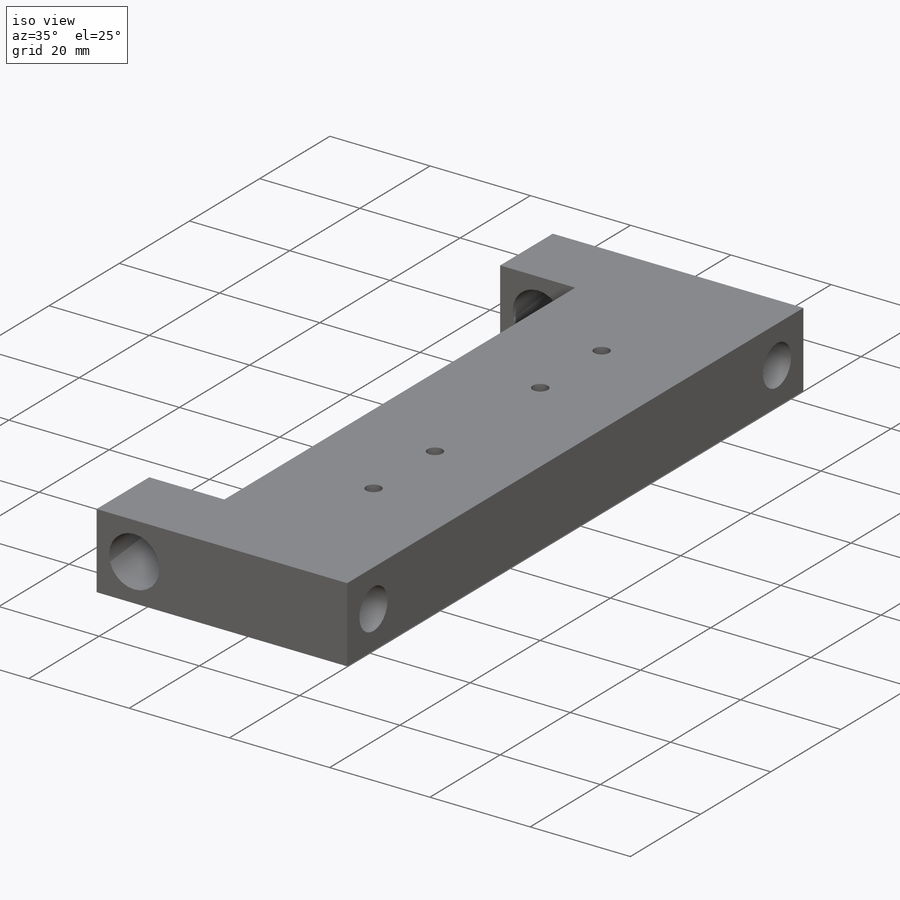
[diagram: iso view]
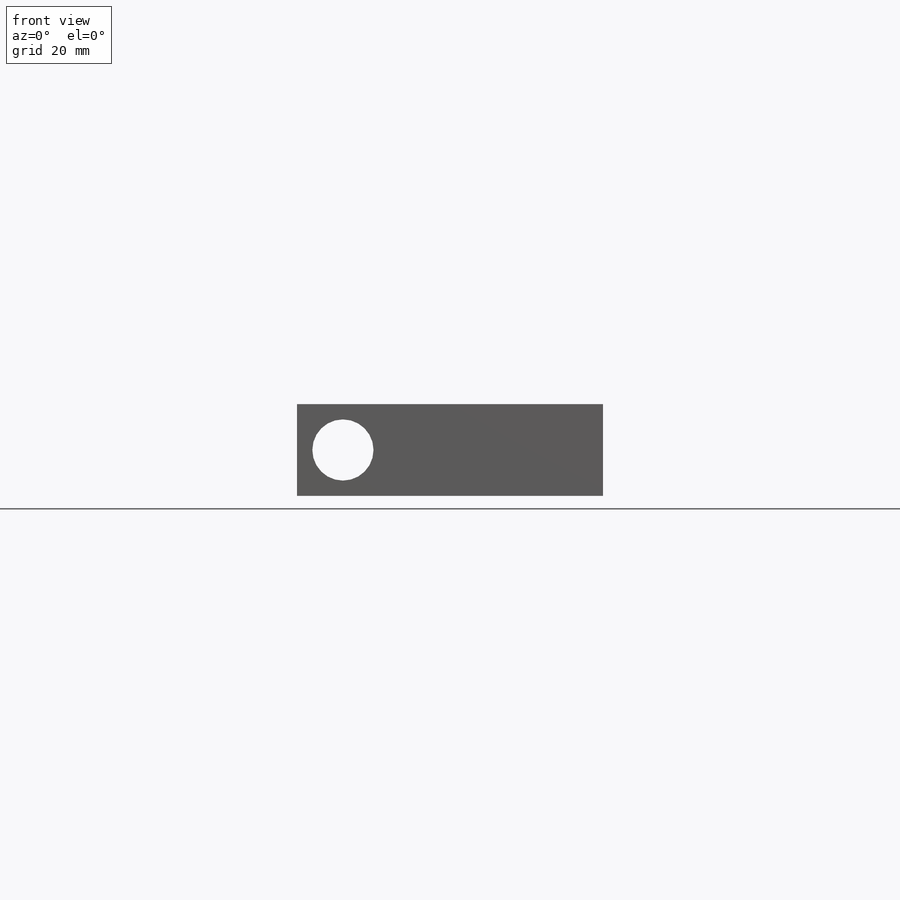
[diagram: front view]
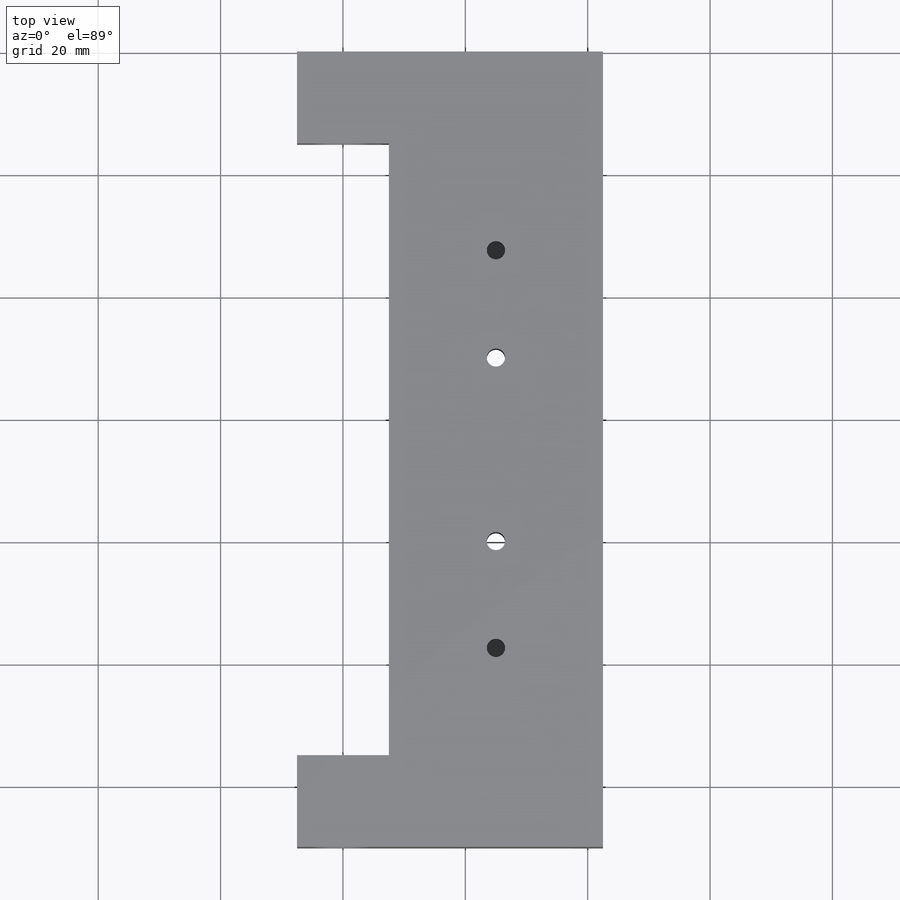
[diagram: top view]
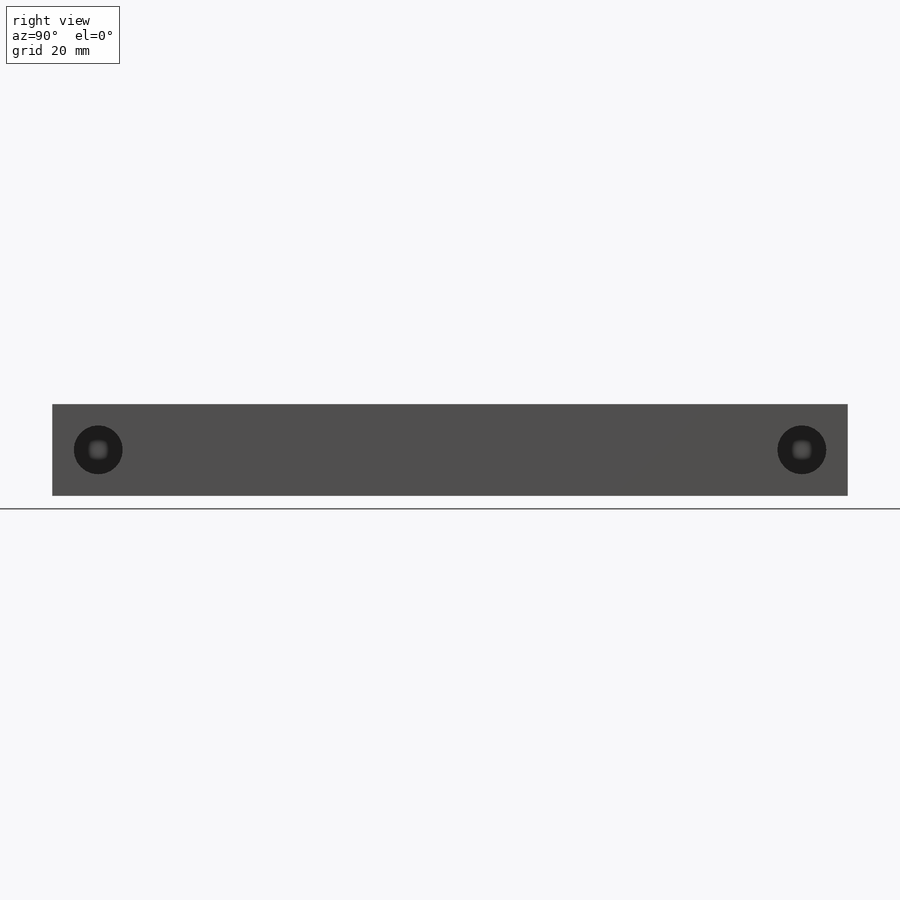
[diagram: right view]
SOLIDWORKS PART (.sldprt)
format: sldprt  version: not decoded by parser v0  size: 197,120 bytes
history: native  units: mm
features: sketch x5, cut_extrude x4, plane x3, material x1, extrude x1 (+8 scaffold rows collapsed)
feature tree (22):
  scaffold x8  (default folders/planes/origin — collapsed)
  material  "Matériau <non spécifié>"
  plane  "Plan de face"
  plane  "Plan de dessus"
  plane  "Plan de droite"
  sketch  "Esquisse1"  dims[D1=10.0mm D2=15.0mm D3=15.0mm D4=35.0mm]
  extrude  "Boss.-Extru.1"  Depth=130mm
  sketch  "Esquisse2"  dims[D1=15.0mm D2=15.0mm D3=15.0mm]
  cut_extrude  "Enlèv. mat.-Extru.1"  Depth=60mm
  sketch  "Esquisse3"  dims[c1.D1=8.0mm c1.D3=8.0mm c2.D1=~3.280352mm c2.D2=7.5mm]
  cut_extrude  "Enlèv. mat.-Extru.2"  Depth=35mm
  sketch  "Esquisse4"  dims[D2=3.0mm D1=8.0mm]
  cut_extrude  "Enlèv. mat.-Extru.3"  Depth=5mm
  sketch  "Esquisse5"  dims[D1=3.0mm D2=15.0mm D3=17.5mm]
  cut_extrude  "Enlèv. mat.-Extru.4"  Depth=15mm
decode coverage: 10 of 10 modeling features carry decoded parameters
note: ~ marks probable driven/reference dimensions
note: suppression state not decoded; provenance and decode notes live in map.json
